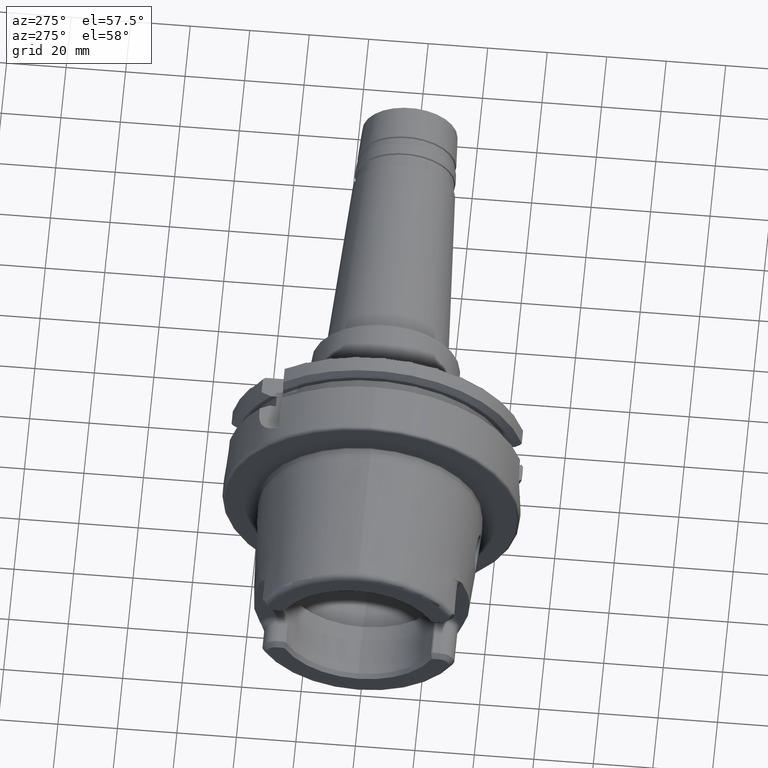
[diagram: clean part render]
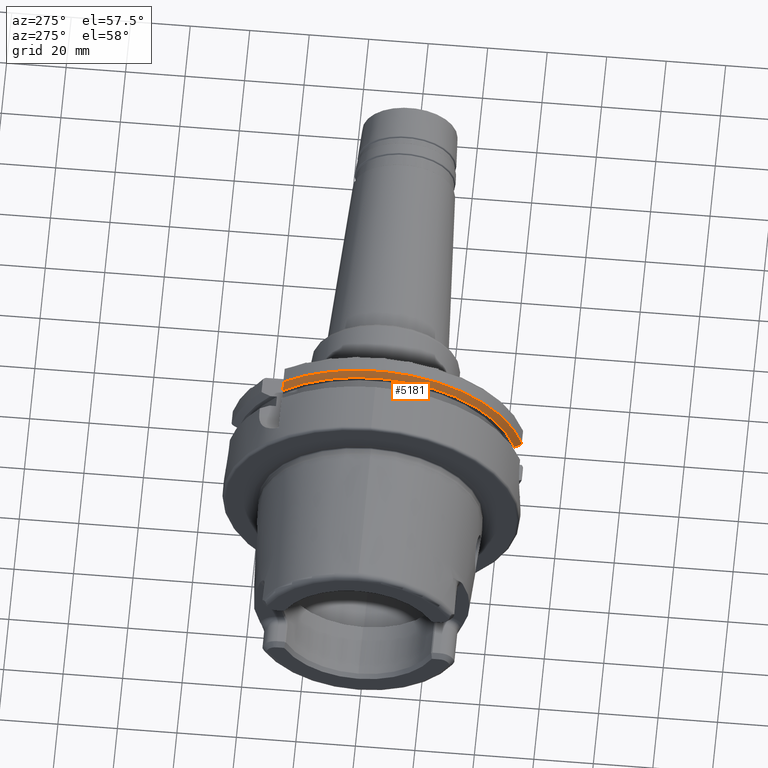
[diagram: same view with one face highlighted and labeled with its STEP entity id]
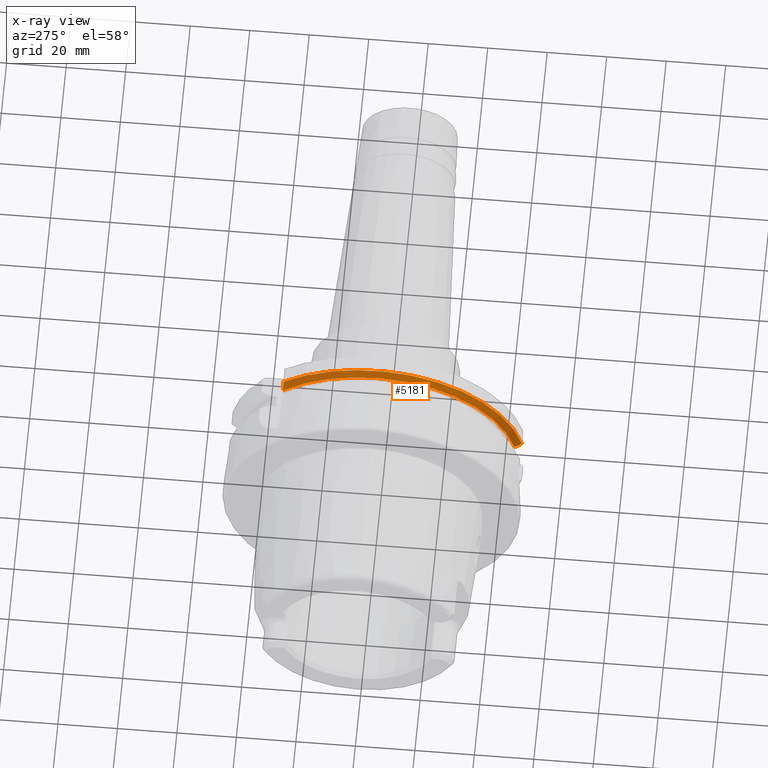
[diagram: x-ray of the same camera — body ghosted, the highlighted face saturated]
A machine part, auxiliary view. The second image highlights one B-rep face of the part: STEP entity #5181.
The next image is the same camera in x-ray: the body ghosted, the highlighted face saturated — about 0% of this face is hidden behind the body in this view.
In plain terms, the highlighted conical surface has half-angle 60 deg.
Its self-contained STEP definition (entity closure, byte-faithful):
#1775=CARTESIAN_POINT('',(9.152596560705E-1,-1.916033777145E0,
4.514668480115E-1));
#1776=CARTESIAN_POINT('',(9.131183297851E-1,-1.912949952600E0,
4.483830234661E-1));
#1777=CARTESIAN_POINT('',(9.088526877728E-1,-1.906800130665E0,
4.422332015314E-1));
#1778=CARTESIAN_POINT('',(9.046210634690E-1,-1.900685964230E0,
4.361190350960E-1));
#1779=CARTESIAN_POINT('',(9.025137546178E-1,-1.897637795276E0,
4.330708661417E-1));
#1781=CARTESIAN_POINT('',(8.612204724409E-1,-1.824203827419E0,
4.330708661417E-1));
#1782=CARTESIAN_POINT('',(8.657507788462E-1,-1.832268638226E0,
4.330708661417E-1));
#1783=CARTESIAN_POINT('',(8.748499811943E-1,-1.848461249840E0,
4.330708661417E-1));
#1784=CARTESIAN_POINT('',(8.886142921230E-1,-1.872938914115E0,
4.330708661417E-1));
#1785=CARTESIAN_POINT('',(8.978677532959E-1,-1.889383788108E0,
4.330708661417E-1));
#1786=CARTESIAN_POINT('',(9.025137546178E-1,-1.897637795276E0,
4.330708661417E-1));
#1788=CARTESIAN_POINT('',(8.612204724409E-1,0.E0,0.E0));
#1789=DIRECTION('',(-1.E0,0.E0,0.E0));
#1790=DIRECTION('',(0.E0,-9.729578356533E-1,2.309827916554E-1));
#1791=AXIS2_PLACEMENT_3D('',#1788,#1789,#1790);
#1793=CARTESIAN_POINT('',(8.612204724409E-1,1.240157480315E0,1.406157673623E0));
#1794=CARTESIAN_POINT('',(8.669374981910E-1,1.240157480315E0,1.419360779231E0));
#1795=CARTESIAN_POINT('',(8.785622463071E-1,1.240157480315E0,1.446044610490E0));
#1796=CARTESIAN_POINT('',(8.965692963106E-1,1.240157480315E0,1.486891623631E0));
#1797=CARTESIAN_POINT('',(9.089647121056E-1,1.240157480315E0,1.514690875890E0));
#1798=CARTESIAN_POINT('',(9.152596560705E-1,1.240157480315E0,1.528730576012E0));
#1800=CARTESIAN_POINT('',(9.152596560705E-1,0.E0,0.E0));
#1801=DIRECTION('',(1.E0,0.E0,0.E0));
#1802=DIRECTION('',(0.E0,6.3E-1,7.765951326142E-1));
#1803=AXIS2_PLACEMENT_3D('',#1800,#1801,#1802);
#2916=CARTESIAN_POINT('',(8.612204724409E-1,-1.824203827419E0,
4.330708661417E-1));
#2917=VERTEX_POINT('',#2916);
#2946=CARTESIAN_POINT('',(8.612204724409E-1,1.240157480315E0,1.406157673623E0));
#2947=VERTEX_POINT('',#2946);
#2950=VERTEX_POINT('',#1798);
#3162=VERTEX_POINT('',#1775);
#3163=VERTEX_POINT('',#1779);
#5166=CARTESIAN_POINT('',(8.882400642557E-1,0.E0,0.E0));
#5167=DIRECTION('',(1.E0,0.E0,0.E0));
#5168=DIRECTION('',(0.E0,0.E0,1.E0));
#5169=AXIS2_PLACEMENT_3D('',#5166,#5167,#5168);
#5170=CONICAL_SURFACE('',#5169,1.921704631185E0,6.E1);
#5171=ORIENTED_EDGE('',*,*,#4921,.T.);
#5173=ORIENTED_EDGE('',*,*,#5172,.F.);
#5175=ORIENTED_EDGE('',*,*,#5174,.T.);
#5177=ORIENTED_EDGE('',*,*,#5176,.T.);
#5178=ORIENTED_EDGE('',*,*,#4785,.T.);
#5179=EDGE_LOOP('',(#5171,#5173,#5175,#5177,#5178));
#5180=FACE_OUTER_BOUND('',#5179,.F.);
#5181=ADVANCED_FACE('',(#5180),#5170,.T.);
#1780=B_SPLINE_CURVE_WITH_KNOTS('',3,(#1775,#1776,#1777,#1778,#1779),
.UNSPECIFIED.,.F.,.F.,(4,1,4),(0.E0,5.E-1,1.E0),.UNSPECIFIED.);
#1787=B_SPLINE_CURVE_WITH_KNOTS('',3,(#1781,#1782,#1783,#1784,#1785,#1786),
.UNSPECIFIED.,.F.,.F.,(4,1,1,4),(0.E0,3.333333333333E-1,6.666666666667E-1,1.E0),
.UNSPECIFIED.);
#1792=CIRCLE('',#1791,1.874905325362E0);
#1799=B_SPLINE_CURVE_WITH_KNOTS('',3,(#1793,#1794,#1795,#1796,#1797,#1798),
.UNSPECIFIED.,.F.,.F.,(4,1,1,4),(0.E0,3.333333333333E-1,6.666666666667E-1,1.E0),
.UNSPECIFIED.);
#1804=CIRCLE('',#1803,1.968503937008E0);
#4785=EDGE_CURVE('',#2950,#3162,#1804,.T.);
#4921=EDGE_CURVE('',#3162,#3163,#1780,.T.);
#5172=EDGE_CURVE('',#2917,#3163,#1787,.T.);
#5174=EDGE_CURVE('',#2917,#2947,#1792,.T.);
#5176=EDGE_CURVE('',#2947,#2950,#1799,.T.);